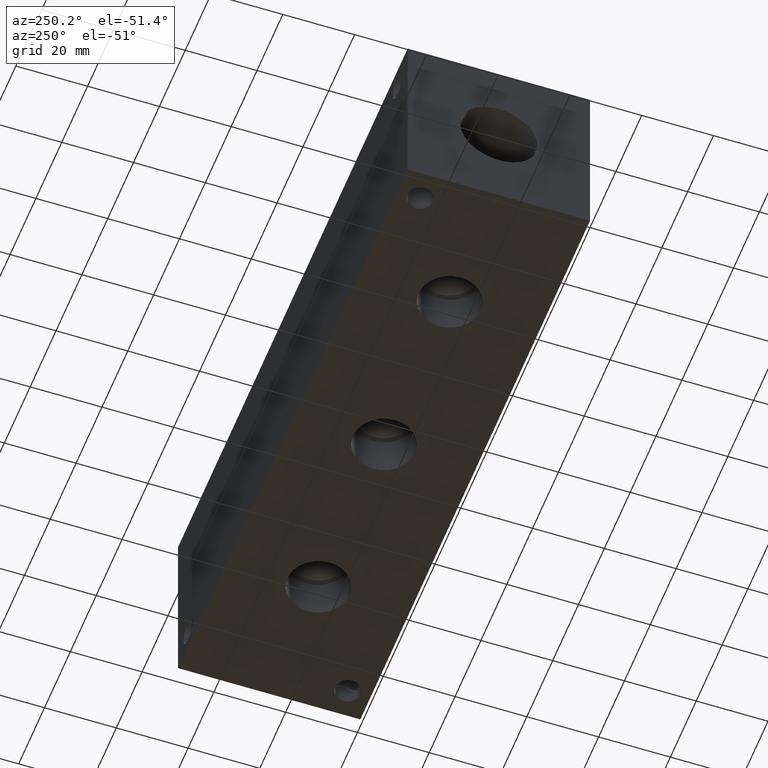
[diagram: clean part render]
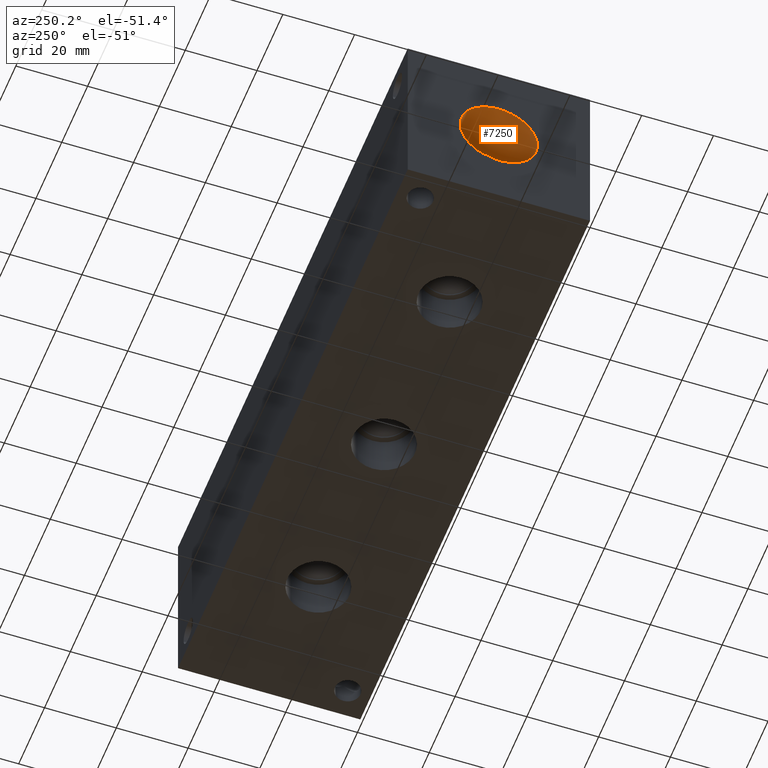
[diagram: same view with one face highlighted and labeled with its STEP entity id]
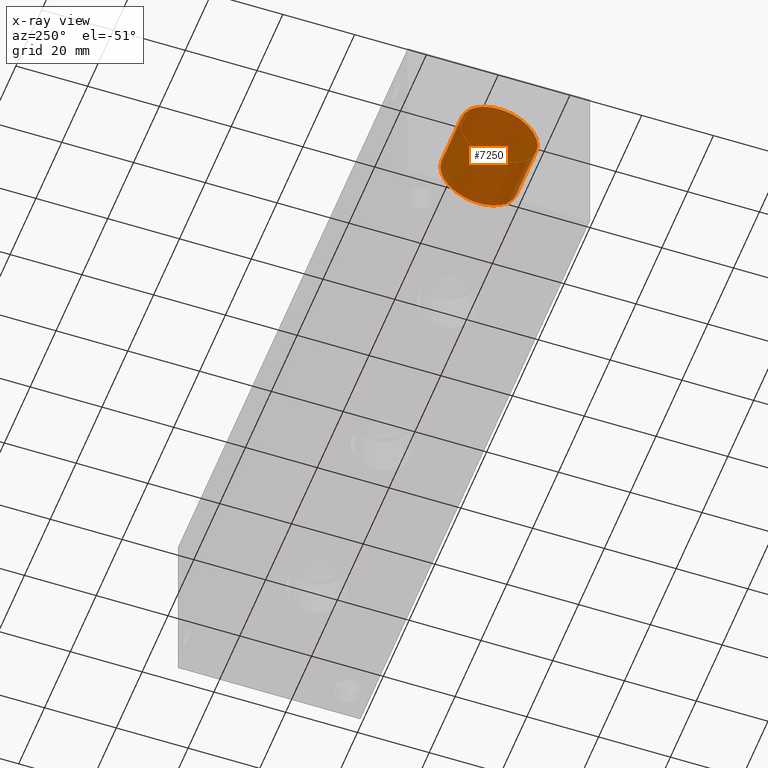
[diagram: x-ray of the same camera — body ghosted, the highlighted face saturated]
A machine part, auxiliary view. The second image highlights one B-rep face of the part: STEP entity #7250.
The next image is the same camera in x-ray: the body ghosted, the highlighted face saturated — about 2% of this face is hidden behind the body in this view.
In plain terms, the highlighted cylindrical surface (bore or boss wall) has radius 10.795 mm, axis along (-1, 0, 0).
Its self-contained STEP definition (entity closure, byte-faithful):
#30=CYLINDRICAL_SURFACE('',#7565,10.795);
#94=CIRCLE('',#7562,10.795);
#95=CIRCLE('',#7563,10.795);
#97=CIRCLE('',#7566,10.795);
#98=CIRCLE('',#7567,10.795);
#845=FACE_OUTER_BOUND('',#1252,.T.);
#1252=EDGE_LOOP('',(#6217,#6218,#6219,#6220,#6221,#6222));
#1970=LINE('',#12352,#2673);
#2673=VECTOR('',#8856,10.795);
#3335=VERTEX_POINT('',#12341);
#3336=VERTEX_POINT('',#12342);
#3338=VERTEX_POINT('',#12348);
#3339=VERTEX_POINT('',#12349);
#4310=EDGE_CURVE('',#3335,#3336,#94,.T.);
#4311=EDGE_CURVE('',#3336,#3335,#95,.T.);
#4313=EDGE_CURVE('',#3338,#3339,#97,.T.);
#4314=EDGE_CURVE('',#3339,#3338,#98,.T.);
#4315=EDGE_CURVE('',#3339,#3336,#1970,.T.);
#6217=ORIENTED_EDGE('',*,*,#4313,.F.);
#6218=ORIENTED_EDGE('',*,*,#4314,.F.);
#6219=ORIENTED_EDGE('',*,*,#4315,.T.);
#6220=ORIENTED_EDGE('',*,*,#4310,.F.);
#6221=ORIENTED_EDGE('',*,*,#4311,.F.);
#6222=ORIENTED_EDGE('',*,*,#4315,.F.);
#7250=ADVANCED_FACE('',(#845),#30,.F.);
#7562=AXIS2_PLACEMENT_3D('',#12343,#8844,#8845);
#7563=AXIS2_PLACEMENT_3D('',#12344,#8846,#8847);
#7565=AXIS2_PLACEMENT_3D('',#12347,#8850,#8851);
#7566=AXIS2_PLACEMENT_3D('',#12350,#8852,#8853);
#7567=AXIS2_PLACEMENT_3D('',#12351,#8854,#8855);
#8844=DIRECTION('center_axis',(-1.,0.,0.));
#8845=DIRECTION('ref_axis',(0.,1.,0.));
#8846=DIRECTION('center_axis',(-1.,0.,0.));
#8847=DIRECTION('ref_axis',(0.,1.,0.));
#8850=DIRECTION('center_axis',(-1.,0.,0.));
#8851=DIRECTION('ref_axis',(0.,1.,0.));
#8852=DIRECTION('center_axis',(1.,0.,0.));
#8853=DIRECTION('ref_axis',(0.,1.,0.));
#8854=DIRECTION('center_axis',(1.,0.,0.));
#8855=DIRECTION('ref_axis',(0.,1.,0.));
#8856=DIRECTION('',(1.,0.,0.));
#12341=CARTESIAN_POINT('',(15.367,36.195,25.4));
#12342=CARTESIAN_POINT('',(15.367,14.605,25.4));
#12343=CARTESIAN_POINT('Origin',(15.367,25.4,25.4));
#12344=CARTESIAN_POINT('Origin',(15.367,25.4,25.4));
#12347=CARTESIAN_POINT('Origin',(7.6835,25.4,25.4));
#12348=CARTESIAN_POINT('',(0.,36.195,25.4));
#12349=CARTESIAN_POINT('',(0.,14.605,25.4));
#12350=CARTESIAN_POINT('Origin',(0.,25.4,25.4));
#12351=CARTESIAN_POINT('Origin',(0.,25.4,25.4));
#12352=CARTESIAN_POINT('',(7.6835,14.605,25.4));